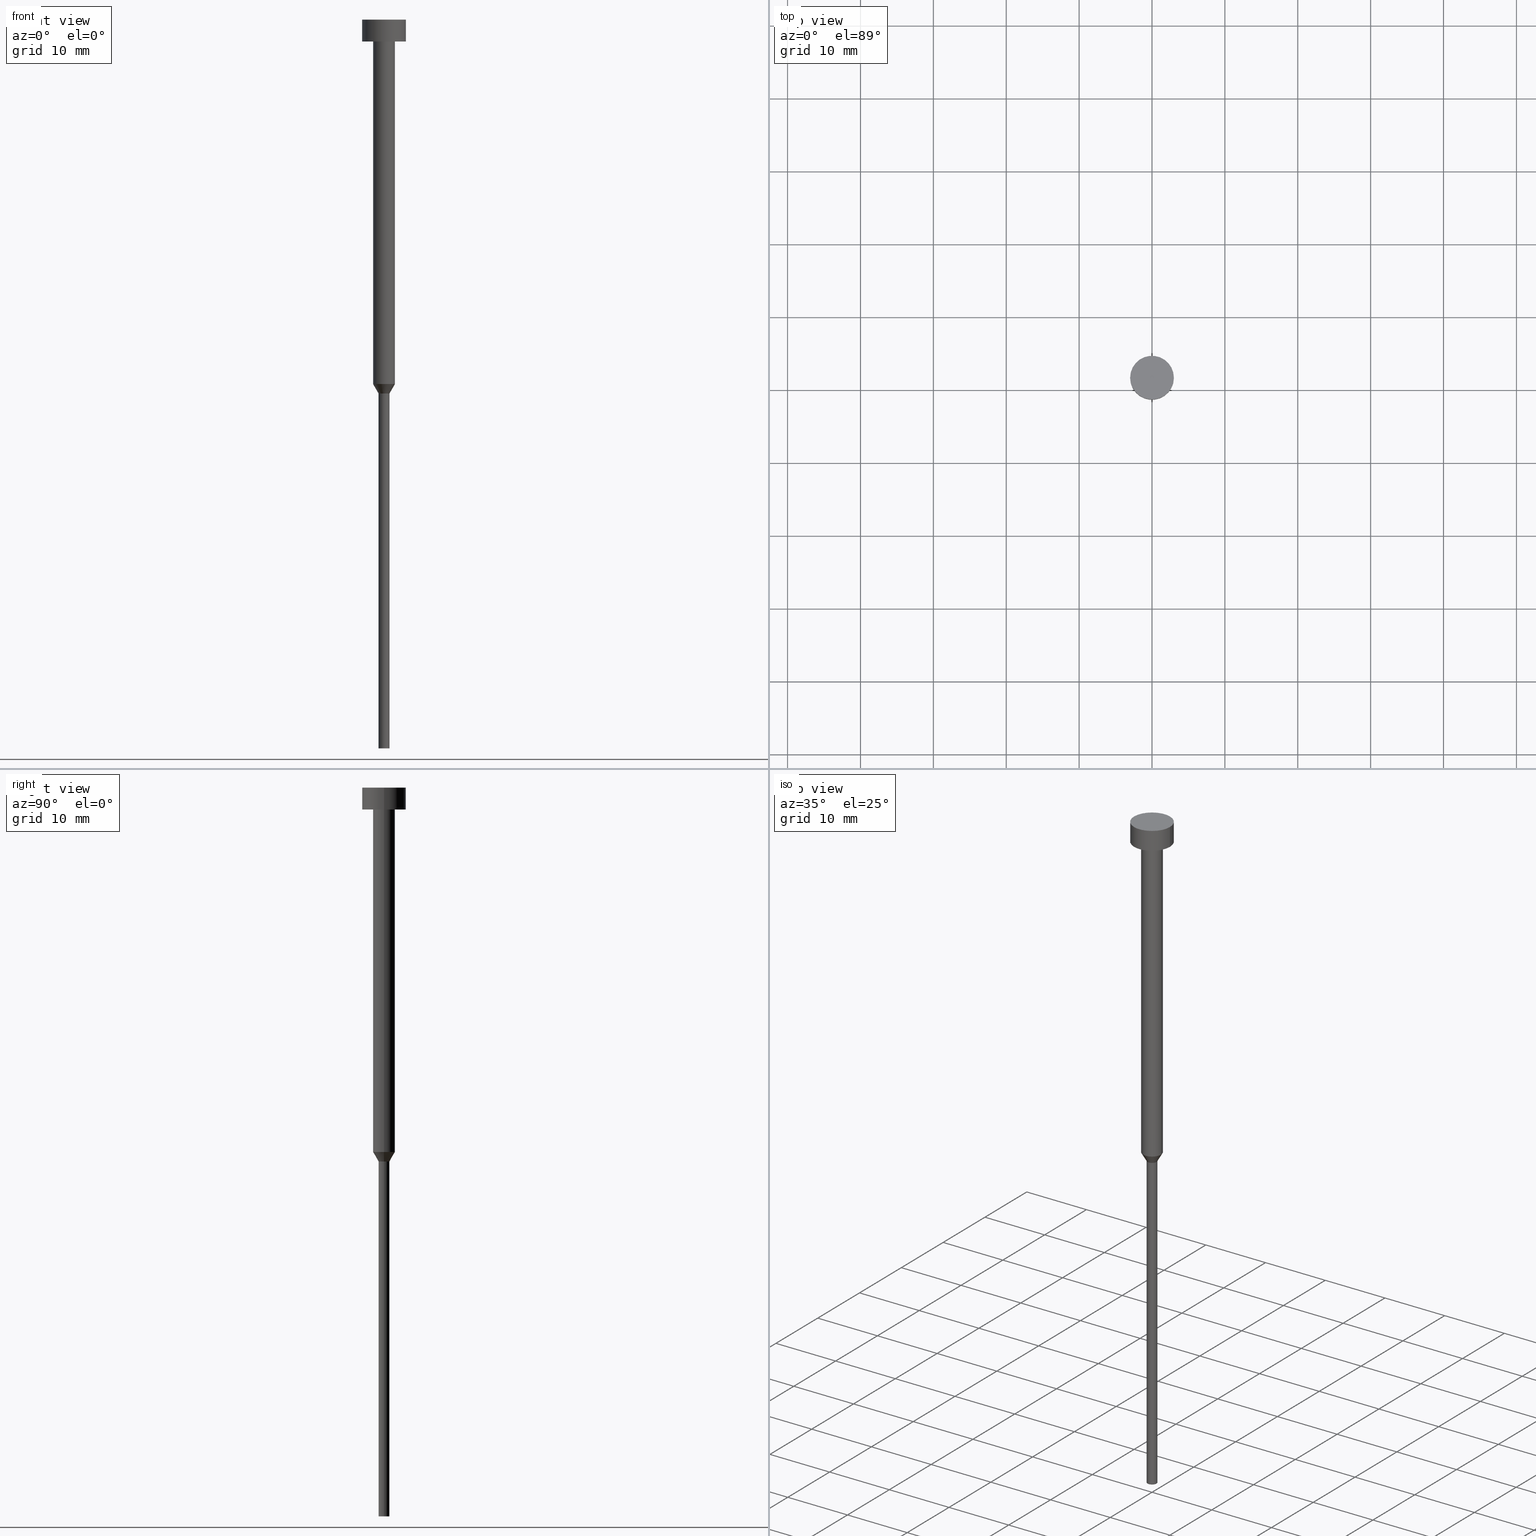
[diagram: canonical four-view strip — front | top / right | iso, engineering-drawing reading convention]
A machine part, canonical four-view strip (front | top / right | iso — engineering-drawing reading convention). The complete STEP part file that produces these views, byte-faithful:
ISO-10303-21;
HEADER;
FILE_DESCRIPTION (( 'STEP AP203' ),
    '1' );
FILE_NAME ('82b9.STEP',
    '2024-07-29T06:35:33',
    ( '' ),
    ( '' ),
    'SwSTEP 2.0',
    'SolidWorks 2019',
    '' );
FILE_SCHEMA (( 'CONFIG_CONTROL_DESIGN' ));
ENDSEC;

DATA;
#1 = AXIS2_PLACEMENT_3D ( 'NONE', #189, #262, #102 ) ;
#2 = COORDINATED_UNIVERSAL_TIME_OFFSET ( 1, 0, .AHEAD. ) ;
#3 = CARTESIAN_POINT ( 'NONE',  ( 0.000000000000000000, 0.000000000000000000, 0.000000000000000000 ) ) ;
#4 = PERSON_AND_ORGANIZATION ( #225, #340 ) ;
#5 = AXIS2_PLACEMENT_3D ( 'NONE', #183, #51, #204 ) ;
#6 = APPROVAL_ROLE ( '' ) ;
#7 = CARTESIAN_POINT ( 'NONE',  ( 1.500000000000000000, 0.000000000000000000, 0.000000000000000000 ) ) ;
#8 = CARTESIAN_POINT ( 'NONE',  ( -1.500000000000000000, 1.836970198721029934E-16, 0.000000000000000000 ) ) ;
#9 = ORIENTED_EDGE ( 'NONE', *, *, #245, .T. ) ;
#10 = CARTESIAN_POINT ( 'NONE',  ( 0.000000000000000000, 0.000000000000000000, -3.000000000000000444 ) ) ;
#11 = EDGE_CURVE ( 'NONE', #25, #290, #216, .T. ) ;
#12 = CARTESIAN_POINT ( 'NONE',  ( 0.000000000000000000, 0.000000000000000000, -100.0000000000000000 ) ) ;
#13 = DIRECTION ( 'NONE',  ( 0.000000000000000000, -0.000000000000000000, 1.000000000000000000 ) ) ;
#14 = ORIENTED_EDGE ( 'NONE', *, *, #127, .F. ) ;
#15 = PRODUCT_DEFINITION_FORMATION_WITH_SPECIFIED_SOURCE ( 'LIBOVOLN�', '', #173, .NOT_KNOWN. ) ;
#16 = FACE_OUTER_BOUND ( 'NONE', #98, .T. ) ;
#17 = CARTESIAN_POINT ( 'NONE',  ( -3.000000000000000000, 3.673940397442059868E-16, 0.000000000000000000 ) ) ;
#18 = EDGE_LOOP ( 'NONE', ( #132, #35, #194, #205 ) ) ;
#19 = LINE ( 'NONE', #129, #176 ) ;
#20 = DIRECTION ( 'NONE',  ( -0.000000000000000000, -0.000000000000000000, 1.000000000000000000 ) ) ;
#21 = FACE_OUTER_BOUND ( 'NONE', #246, .T. ) ;
#22 = AXIS2_PLACEMENT_3D ( 'NONE', #336, #31, #33 ) ;
#23 = AXIS2_PLACEMENT_3D ( 'NONE', #146, #13, #232 ) ;
#24 = ORIENTED_EDGE ( 'NONE', *, *, #110, .T. ) ;
#25 = VERTEX_POINT ( 'NONE', #67 ) ;
#26 = EDGE_CURVE ( 'NONE', #178, #219, #203, .T. ) ;
#27 = AXIS2_PLACEMENT_3D ( 'NONE', #44, #192, #154 ) ;
#28 = CALENDAR_DATE ( 2024, 29, 7 ) ;
#29 = CIRCLE ( 'NONE', #27, 1.500000000000000000 ) ;
#30 = CC_DESIGN_DATE_AND_TIME_ASSIGNMENT ( #61, #112, ( #130 ) ) ;
#31 = DIRECTION ( 'NONE',  ( -0.000000000000000000, -0.000000000000000000, 1.000000000000000000 ) ) ;
#32 = DATE_TIME_ROLE ( 'creation_date' ) ;
#33 = DIRECTION ( 'NONE',  ( 1.000000000000000000, 0.000000000000000000, 0.000000000000000000 ) ) ;
#34 = ADVANCED_FACE ( 'NONE', ( #284 ), #37, .T. ) ;
#35 = ORIENTED_EDGE ( 'NONE', *, *, #26, .T. ) ;
#36 = AXIS2_PLACEMENT_3D ( 'NONE', #309, #233, #267 ) ;
#37 = PLANE ( 'NONE',  #23 ) ;
#38 = UNCERTAINTY_MEASURE_WITH_UNIT (LENGTH_MEASURE( 1.000000000000000082E-05 ), #294, 'distance_accuracy_value', 'NONE');
#39 = CARTESIAN_POINT ( 'NONE',  ( 3.000000000000000000, 0.000000000000000000, 0.000000000000000000 ) ) ;
#40 = DIRECTION ( 'NONE',  ( -0.000000000000000000, -0.000000000000000000, 1.000000000000000000 ) ) ;
#41 = LINE ( 'NONE', #7, #248 ) ;
#42 = VERTEX_POINT ( 'NONE', #286 ) ;
#43 = DIRECTION ( 'NONE',  ( -0.000000000000000000, -0.000000000000000000, 1.000000000000000000 ) ) ;
#44 = CARTESIAN_POINT ( 'NONE',  ( 0.000000000000000000, 0.000000000000000000, -50.00000000000000000 ) ) ;
#45 = LINE ( 'NONE', #97, #277 ) ;
#46 = VERTEX_POINT ( 'NONE', #234 ) ;
#47 = CIRCLE ( 'NONE', #218, 3.000000000000000000 ) ;
#48 = DIRECTION ( 'NONE',  ( 1.000000000000000000, 0.000000000000000000, 0.000000000000000000 ) ) ;
#49 = DIRECTION ( 'NONE',  ( 1.000000000000000000, 0.000000000000000000, 0.000000000000000000 ) ) ;
#50 = CARTESIAN_POINT ( 'NONE',  ( 3.000000000000000000, 0.000000000000000000, -3.673940397442059868E-16 ) ) ;
#51 = DIRECTION ( 'NONE',  ( -0.000000000000000000, -0.000000000000000000, 1.000000000000000000 ) ) ;
#52 = CIRCLE ( 'NONE', #298, 3.000000000000000000 ) ;
#53 = ORIENTED_EDGE ( 'NONE', *, *, #167, .F. ) ;
#54 = EDGE_CURVE ( 'NONE', #166, #46, #41, .T. ) ;
#55 = ORIENTED_EDGE ( 'NONE', *, *, #251, .F. ) ;
#56 = AXIS2_PLACEMENT_3D ( 'NONE', #158, #160, #73 ) ;
#57 = AXIS2_PLACEMENT_3D ( 'NONE', #94, #311, #255 ) ;
#58 = APPROVAL_ROLE ( '' ) ;
#59 = AXIS2_PLACEMENT_3D ( 'NONE', #346, #243, #210 ) ;
#60 = DESIGN_CONTEXT ( 'detailed design', #222, 'design' ) ;
#61 = DATE_AND_TIME ( #334, #328 ) ;
#62 = CC_DESIGN_PERSON_AND_ORGANIZATION_ASSIGNMENT ( #87, #136, ( #15 ) ) ;
#63 = MECHANICAL_CONTEXT ( 'NONE', #144, 'mechanical' ) ;
#64 = SECURITY_CLASSIFICATION_LEVEL ( 'unclassified' ) ;
#65 = CYLINDRICAL_SURFACE ( 'NONE', #324, 3.000000000000000000 ) ;
#66 = LOCAL_TIME ( 8, 35, 33.00000000000000000, #174 ) ;
#67 = CARTESIAN_POINT ( 'NONE',  ( 0.7500000000000000000, 0.000000000000000000, -100.0000000000000000 ) ) ;
#68 = FACE_OUTER_BOUND ( 'NONE', #106, .T. ) ;
#69 = DIRECTION ( 'NONE',  ( -0.5000000000000021094, 6.123233995736791920E-17, 0.8660254037844373753 ) ) ;
#70 = CARTESIAN_POINT ( 'NONE',  ( 0.000000000000000000, 0.000000000000000000, -3.673940397442059868E-16 ) ) ;
#71 = CARTESIAN_POINT ( 'NONE',  ( 0.000000000000000000, 0.000000000000000000, -50.00000000000000000 ) ) ;
#72 = EDGE_LOOP ( 'NONE', ( #287, #353, #270, #53 ) ) ;
#73 = DIRECTION ( 'NONE',  ( 1.000000000000000000, 0.000000000000000000, 0.000000000000000000 ) ) ;
#74 = CARTESIAN_POINT ( 'NONE',  ( 0.000000000000000000, 0.000000000000000000, -51.29903810567665090 ) ) ;
#75 = DIRECTION ( 'NONE',  ( 0.5000000000000021094, 0.000000000000000000, 0.8660254037844373753 ) ) ;
#76 = EDGE_LOOP ( 'NONE', ( #320, #9, #125, #213 ) ) ;
#77 = AXIS2_PLACEMENT_3D ( 'NONE', #104, #116, #48 ) ;
#78 = FACE_OUTER_BOUND ( 'NONE', #76, .T. ) ;
#79 = DIRECTION ( 'NONE',  ( -0.000000000000000000, -0.000000000000000000, 1.000000000000000000 ) ) ;
#80 = ADVANCED_FACE ( 'NONE', ( #115 ), #95, .T. ) ;
#81 = ORIENTED_EDGE ( 'NONE', *, *, #175, .T. ) ;
#82 = EDGE_CURVE ( 'NONE', #42, #166, #45, .T. ) ;
#83 = LOCAL_TIME ( 8, 35, 33.00000000000000000, #114 ) ;
#84 = ORIENTED_EDGE ( 'NONE', *, *, #245, .F. ) ;
#85 = AXIS2_PLACEMENT_3D ( 'NONE', #3, #143, #111 ) ;
#86 = APPROVAL_STATUS ( 'not_yet_approved' ) ;
#87 = PERSON_AND_ORGANIZATION ( #225, #340 ) ;
#88 = CALENDAR_DATE ( 2024, 29, 7 ) ;
#89 = ADVANCED_FACE ( 'NONE', ( #236 ), #292, .T. ) ;
#90 = DATE_AND_TIME ( #88, #66 ) ;
#91 = DIRECTION ( 'NONE',  ( -0.000000000000000000, -0.000000000000000000, 1.000000000000000000 ) ) ;
#92 = ORIENTED_EDGE ( 'NONE', *, *, #82, .T. ) ;
#93 = DIRECTION ( 'NONE',  ( -1.000000000000000000, 0.000000000000000000, -0.000000000000000000 ) ) ;
#94 = CARTESIAN_POINT ( 'NONE',  ( 0.000000000000000000, 0.000000000000000000, -100.0000000000000000 ) ) ;
#95 = CONICAL_SURFACE ( 'NONE', #164, 1.500000000000000000, 0.5235987755983013692 ) ;
#96 = CARTESIAN_POINT ( 'NONE',  ( 0.000000000000000000, 0.000000000000000000, -100.0000000000000000 ) ) ;
#97 = CARTESIAN_POINT ( 'NONE',  ( 1.500000000000000000, 0.000000000000000000, -50.00000000000000000 ) ) ;
#98 = EDGE_LOOP ( 'NONE', ( #217, #348, #92, #296 ) ) ;
#99 = CC_DESIGN_PERSON_AND_ORGANIZATION_ASSIGNMENT ( #169, #170, ( #15 ) ) ;
#100 = CARTESIAN_POINT ( 'NONE',  ( -1.500000000000000000, 1.836970198721029934E-16, -50.00000000000000000 ) ) ;
#101 = PERSON_AND_ORGANIZATION_ROLE ( 'design_owner' ) ;
#102 = DIRECTION ( 'NONE',  ( 1.000000000000000000, 0.000000000000000000, 0.000000000000000000 ) ) ;
#103 = VERTEX_POINT ( 'NONE', #50 ) ;
#104 = CARTESIAN_POINT ( 'NONE',  ( 0.000000000000000000, 0.000000000000000000, -3.000000000000000444 ) ) ;
#105 = EDGE_CURVE ( 'NONE', #107, #258, #155, .T. ) ;
#106 = EDGE_LOOP ( 'NONE', ( #354, #14 ) ) ;
#107 = VERTEX_POINT ( 'NONE', #148 ) ;
#108 = CIRCLE ( 'NONE', #199, 3.000000000000000000 ) ;
#109 = CIRCLE ( 'NONE', #271, 1.500000000000000000 ) ;
#110 = EDGE_CURVE ( 'NONE', #166, #219, #109, .T. ) ;
#111 = DIRECTION ( 'NONE',  ( 1.000000000000000000, 0.000000000000000000, 0.000000000000000000 ) ) ;
#112 = DATE_TIME_ROLE ( 'classification_date' ) ;
#113 = PRODUCT_DEFINITION_SHAPE ( 'NONE', 'NONE',  #138 ) ;
#114 = COORDINATED_UNIVERSAL_TIME_OFFSET ( 1, 0, .AHEAD. ) ;
#115 = FACE_OUTER_BOUND ( 'NONE', #18, .T. ) ;
#116 = DIRECTION ( 'NONE',  ( -0.000000000000000000, -0.000000000000000000, 1.000000000000000000 ) ) ;
#117 = DATE_AND_TIME ( #231, #83 ) ;
#118 = FACE_OUTER_BOUND ( 'NONE', #121, .T. ) ;
#119 = CC_DESIGN_SECURITY_CLASSIFICATION ( #130, ( #15 ) ) ;
#120 = DIRECTION ( 'NONE',  ( 1.000000000000000000, 0.000000000000000000, 0.000000000000000000 ) ) ;
#121 = EDGE_LOOP ( 'NONE', ( #84, #133, #344, #165 ) ) ;
#122 = DIRECTION ( 'NONE',  ( -0.000000000000000000, -0.000000000000000000, 1.000000000000000000 ) ) ;
#123 = DIRECTION ( 'NONE',  ( -0.000000000000000000, -0.000000000000000000, 1.000000000000000000 ) ) ;
#124 = MANIFOLD_SOLID_BREP ( 'Rotovat1', #177 ) ;
#125 = ORIENTED_EDGE ( 'NONE', *, *, #230, .F. ) ;
#126 = CC_DESIGN_PERSON_AND_ORGANIZATION_ASSIGNMENT ( #200, #101, ( #173 ) ) ;
#127 = EDGE_CURVE ( 'NONE', #290, #25, #342, .T. ) ;
#128 = CYLINDRICAL_SURFACE ( 'NONE', #171, 0.7500000000000000000 ) ;
#129 = CARTESIAN_POINT ( 'NONE',  ( -0.7500000000000000000, 9.184850993605149670E-17, 0.000000000000000000 ) ) ;
#130 = SECURITY_CLASSIFICATION ( '', '', #64 ) ;
#131 = APPROVAL_PERSON_ORGANIZATION ( #198, #250, #58 ) ;
#132 = ORIENTED_EDGE ( 'NONE', *, *, #230, .T. ) ;
#133 = ORIENTED_EDGE ( 'NONE', *, *, #127, .T. ) ;
#134 = APPROVAL_PERSON_ORGANIZATION ( #281, #315, #6 ) ;
#135 = ADVANCED_FACE ( 'NONE', ( #239 ), #185, .T. ) ;
#136 = PERSON_AND_ORGANIZATION_ROLE ( 'creator' ) ;
#137 = VECTOR ( 'NONE', #214, 1000.000000000000000 ) ;
#138 = PRODUCT_DEFINITION ( 'NEZN�M�', '', #15, #60 ) ;
#139 = VECTOR ( 'NONE', #40, 1000.000000000000000 ) ;
#140 = PERSON_AND_ORGANIZATION_ROLE ( 'classification_officer' ) ;
#141 = ORIENTED_EDGE ( 'NONE', *, *, #297, .T. ) ;
#142 = APPROVAL_DATE_TIME ( #301, #250 ) ;
#143 = DIRECTION ( 'NONE',  ( 0.000000000000000000, 0.000000000000000000, 1.000000000000000000 ) ) ;
#144 = APPLICATION_CONTEXT ( 'configuration controlled 3d designs of mechanical parts and assemblies' ) ;
#145 = ADVANCED_BREP_SHAPE_REPRESENTATION ( '82b9', ( #124, #85 ), #229 ) ;
#146 = CARTESIAN_POINT ( 'NONE',  ( 0.000000000000000000, 0.000000000000000000, -1.836970198721029934E-16 ) ) ;
#147 = DIRECTION ( 'NONE',  ( 1.000000000000000000, 0.000000000000000000, 0.000000000000000000 ) ) ;
#148 = CARTESIAN_POINT ( 'NONE',  ( -3.000000000000000000, 3.673940397442059868E-16, -3.000000000000000444 ) ) ;
#149 = DIRECTION ( 'NONE',  ( -0.000000000000000000, -0.000000000000000000, 1.000000000000000000 ) ) ;
#150 = EDGE_LOOP ( 'NONE', ( #180, #273, #240, #323 ) ) ;
#151 = CARTESIAN_POINT ( 'NONE',  ( -0.7500000000000000000, 9.184850993605149670E-17, -51.29903810567665090 ) ) ;
#152 = CC_DESIGN_DATE_AND_TIME_ASSIGNMENT ( #300, #32, ( #138 ) ) ;
#153 = AXIS2_PLACEMENT_3D ( 'NONE', #96, #338, #187 ) ;
#154 = DIRECTION ( 'NONE',  ( 1.000000000000000000, 0.000000000000000000, 0.000000000000000000 ) ) ;
#155 = LINE ( 'NONE', #17, #139 ) ;
#156 = EDGE_CURVE ( 'NONE', #107, #307, #52, .T. ) ;
#157 = ORIENTED_EDGE ( 'NONE', *, *, #54, .F. ) ;
#158 = CARTESIAN_POINT ( 'NONE',  ( 0.000000000000000000, 0.000000000000000000, -50.00000000000000000 ) ) ;
#159 =( NAMED_UNIT ( * ) SI_UNIT ( $, .STERADIAN. ) SOLID_ANGLE_UNIT ( ) );
#160 = DIRECTION ( 'NONE',  ( -0.000000000000000000, -0.000000000000000000, 1.000000000000000000 ) ) ;
#161 = CYLINDRICAL_SURFACE ( 'NONE', #351, 1.500000000000000000 ) ;
#162 = VECTOR ( 'NONE', #20, 1000.000000000000000 ) ;
#163 = ORIENTED_EDGE ( 'NONE', *, *, #251, .T. ) ;
#164 = AXIS2_PLACEMENT_3D ( 'NONE', #337, #319, #120 ) ;
#165 = ORIENTED_EDGE ( 'NONE', *, *, #330, .F. ) ;
#166 = VERTEX_POINT ( 'NONE', #179 ) ;
#167 = EDGE_CURVE ( 'NONE', #258, #103, #308, .T. ) ;
#168 = VECTOR ( 'NONE', #235, 1000.000000000000000 ) ;
#169 = PERSON_AND_ORGANIZATION ( #225, #340 ) ;
#170 = PERSON_AND_ORGANIZATION_ROLE ( 'design_supplier' ) ;
#171 = AXIS2_PLACEMENT_3D ( 'NONE', #349, #43, #260 ) ;
#172 = APPLICATION_PROTOCOL_DEFINITION ( 'international standard', 'config_control_design', 1994, #222 ) ;
#173 = PRODUCT ( '82b9', '82b9', '', ( #63 ) ) ;
#174 = COORDINATED_UNIVERSAL_TIME_OFFSET ( 1, 0, .AHEAD. ) ;
#175 = EDGE_CURVE ( 'NONE', #46, #237, #274, .T. ) ;
#176 = VECTOR ( 'NONE', #352, 1000.000000000000000 ) ;
#177 = CLOSED_SHELL ( 'NONE', ( #327, #302, #80, #196, #242, #272, #206, #89, #221, #135, #34 ) ) ;
#178 = VERTEX_POINT ( 'NONE', #151 ) ;
#179 = CARTESIAN_POINT ( 'NONE',  ( 1.500000000000000000, 0.000000000000000000, -50.00000000000000000 ) ) ;
#180 = ORIENTED_EDGE ( 'NONE', *, *, #278, .F. ) ;
#181 = ORIENTED_EDGE ( 'NONE', *, *, #105, .T. ) ;
#182 = EDGE_CURVE ( 'NONE', #307, #103, #241, .T. ) ;
#183 = CARTESIAN_POINT ( 'NONE',  ( 0.000000000000000000, 0.000000000000000000, -3.673940397442059868E-16 ) ) ;
#184 = CARTESIAN_POINT ( 'NONE',  ( 3.000000000000000000, 0.000000000000000000, -3.000000000000000444 ) ) ;
#185 = CYLINDRICAL_SURFACE ( 'NONE', #249, 3.000000000000000000 ) ;
#186 = EDGE_LOOP ( 'NONE', ( #141, #209 ) ) ;
#187 = DIRECTION ( 'NONE',  ( -1.000000000000000000, 0.000000000000000000, -0.000000000000000000 ) ) ;
#188 = DIRECTION ( 'NONE',  ( -0.000000000000000000, -0.000000000000000000, 1.000000000000000000 ) ) ;
#189 = CARTESIAN_POINT ( 'NONE',  ( 0.000000000000000000, 0.000000000000000000, 0.000000000000000000 ) ) ;
#190 = ORIENTED_EDGE ( 'NONE', *, *, #175, .F. ) ;
#191 = FACE_BOUND ( 'NONE', #335, .T. ) ;
#192 = DIRECTION ( 'NONE',  ( -0.000000000000000000, -0.000000000000000000, 1.000000000000000000 ) ) ;
#193 = CC_DESIGN_APPROVAL ( #250, ( #15 ) ) ;
#194 = ORIENTED_EDGE ( 'NONE', *, *, #110, .F. ) ;
#195 = EDGE_LOOP ( 'NONE', ( #24, #244, #190, #157 ) ) ;
#196 = ADVANCED_FACE ( 'NONE', ( #78 ), #322, .T. ) ;
#197 = AXIS2_PLACEMENT_3D ( 'NONE', #74, #79, #49 ) ;
#198 = PERSON_AND_ORGANIZATION ( #225, #340 ) ;
#199 = AXIS2_PLACEMENT_3D ( 'NONE', #70, #122, #304 ) ;
#200 = PERSON_AND_ORGANIZATION ( #225, #340 ) ;
#201 = APPROVAL_DATE_TIME ( #117, #315 ) ;
#202 = FACE_OUTER_BOUND ( 'NONE', #314, .T. ) ;
#203 = LINE ( 'NONE', #339, #283 ) ;
#204 = DIRECTION ( 'NONE',  ( 1.000000000000000000, 0.000000000000000000, 0.000000000000000000 ) ) ;
#205 = ORIENTED_EDGE ( 'NONE', *, *, #82, .F. ) ;
#206 = ADVANCED_FACE ( 'NONE', ( #16 ), #321, .T. ) ;
#207 = CARTESIAN_POINT ( 'NONE',  ( -1.500000000000000000, 1.836970198721029934E-16, -3.000000000000000444 ) ) ;
#208 = DIRECTION ( 'NONE',  ( -0.000000000000000000, -0.000000000000000000, 1.000000000000000000 ) ) ;
#209 = ORIENTED_EDGE ( 'NONE', *, *, #167, .T. ) ;
#210 = DIRECTION ( 'NONE',  ( 1.000000000000000000, 0.000000000000000000, 0.000000000000000000 ) ) ;
#211 = DIRECTION ( 'NONE',  ( 1.000000000000000000, 0.000000000000000000, 0.000000000000000000 ) ) ;
#212 = CARTESIAN_POINT ( 'NONE',  ( 0.000000000000000000, 0.000000000000000000, -3.000000000000000444 ) ) ;
#213 = ORIENTED_EDGE ( 'NONE', *, *, #345, .F. ) ;
#214 = DIRECTION ( 'NONE',  ( -0.000000000000000000, -0.000000000000000000, 1.000000000000000000 ) ) ;
#215 = CIRCLE ( 'NONE', #36, 0.7500000000000000000 ) ;
#216 = CIRCLE ( 'NONE', #57, 0.7500000000000000000 ) ;
#217 = ORIENTED_EDGE ( 'NONE', *, *, #26, .F. ) ;
#218 = AXIS2_PLACEMENT_3D ( 'NONE', #10, #285, #147 ) ;
#219 = VERTEX_POINT ( 'NONE', #100 ) ;
#220 = CC_DESIGN_PERSON_AND_ORGANIZATION_ASSIGNMENT ( #276, #331, ( #138 ) ) ;
#221 = ADVANCED_FACE ( 'NONE', ( #191, #21 ), #265, .T. ) ;
#222 = APPLICATION_CONTEXT ( 'configuration controlled 3d designs of mechanical parts and assemblies' ) ;
#223 = APPROVAL_PERSON_ORGANIZATION ( #226, #326, #228 ) ;
#224 = COORDINATED_UNIVERSAL_TIME_OFFSET ( 1, 0, .AHEAD. ) ;
#225 = PERSON ( 'NEUR�EN�', 'NEUR�EN�', 'NEUR�EN�', ('NEUR�EN�'), ('NEUR�EN�'), ('NEUR�EN�') ) ;
#226 = PERSON_AND_ORGANIZATION ( #225, #340 ) ;
#227 = PRODUCT_RELATED_PRODUCT_CATEGORY ( 'detail', '', ( #173 ) ) ;
#228 = APPROVAL_ROLE ( '' ) ;
#229 =( GEOMETRIC_REPRESENTATION_CONTEXT ( 3 ) GLOBAL_UNCERTAINTY_ASSIGNED_CONTEXT ( ( #38 ) ) GLOBAL_UNIT_ASSIGNED_CONTEXT ( ( #294, #279, #159 ) ) REPRESENTATION_CONTEXT ( 'NONE', 'WORKASPACE' ) );
#230 = EDGE_CURVE ( 'NONE', #42, #178, #215, .T. ) ;
#231 = CALENDAR_DATE ( 2024, 29, 7 ) ;
#232 = DIRECTION ( 'NONE',  ( 1.000000000000000000, 0.000000000000000000, 0.000000000000000000 ) ) ;
#233 = DIRECTION ( 'NONE',  ( -0.000000000000000000, -0.000000000000000000, 1.000000000000000000 ) ) ;
#234 = CARTESIAN_POINT ( 'NONE',  ( 1.500000000000000000, 0.000000000000000000, -3.000000000000000444 ) ) ;
#235 = DIRECTION ( 'NONE',  ( -0.000000000000000000, -0.000000000000000000, 1.000000000000000000 ) ) ;
#236 = FACE_OUTER_BOUND ( 'NONE', #150, .T. ) ;
#237 = VERTEX_POINT ( 'NONE', #207 ) ;
#238 = DIRECTION ( 'NONE',  ( 1.000000000000000000, 0.000000000000000000, 0.000000000000000000 ) ) ;
#239 = FACE_OUTER_BOUND ( 'NONE', #72, .T. ) ;
#240 = ORIENTED_EDGE ( 'NONE', *, *, #54, .T. ) ;
#241 = LINE ( 'NONE', #39, #137 ) ;
#242 = ADVANCED_FACE ( 'NONE', ( #68 ), #341, .T. ) ;
#243 = DIRECTION ( 'NONE',  ( -0.000000000000000000, -0.000000000000000000, 1.000000000000000000 ) ) ;
#244 = ORIENTED_EDGE ( 'NONE', *, *, #278, .T. ) ;
#245 = EDGE_CURVE ( 'NONE', #290, #178, #19, .T. ) ;
#246 = EDGE_LOOP ( 'NONE', ( #55, #259 ) ) ;
#247 = CIRCLE ( 'NONE', #197, 0.7500000000000000000 ) ;
#248 = VECTOR ( 'NONE', #149, 1000.000000000000000 ) ;
#249 = AXIS2_PLACEMENT_3D ( 'NONE', #289, #123, #347 ) ;
#250 = APPROVAL ( #254, 'NEUR�EN�' ) ;
#251 = EDGE_CURVE ( 'NONE', #307, #107, #47, .T. ) ;
#252 = COORDINATED_UNIVERSAL_TIME_OFFSET ( 1, 0, .AHEAD. ) ;
#253 = APPROVAL_STATUS ( 'not_yet_approved' ) ;
#254 = APPROVAL_STATUS ( 'not_yet_approved' ) ;
#255 = DIRECTION ( 'NONE',  ( 1.000000000000000000, 0.000000000000000000, 0.000000000000000000 ) ) ;
#256 = LINE ( 'NONE', #8, #168 ) ;
#257 = DIRECTION ( 'NONE',  ( -0.000000000000000000, -0.000000000000000000, 1.000000000000000000 ) ) ;
#258 = VERTEX_POINT ( 'NONE', #288 ) ;
#259 = ORIENTED_EDGE ( 'NONE', *, *, #156, .F. ) ;
#260 = DIRECTION ( 'NONE',  ( 1.000000000000000000, 0.000000000000000000, 0.000000000000000000 ) ) ;
#261 = LINE ( 'NONE', #318, #162 ) ;
#262 = DIRECTION ( 'NONE',  ( -0.000000000000000000, -0.000000000000000000, 1.000000000000000000 ) ) ;
#263 = ORIENTED_EDGE ( 'NONE', *, *, #182, .F. ) ;
#264 = CC_DESIGN_PERSON_AND_ORGANIZATION_ASSIGNMENT ( #4, #140, ( #130 ) ) ;
#265 = PLANE ( 'NONE',  #355 ) ;
#266 = FACE_OUTER_BOUND ( 'NONE', #195, .T. ) ;
#267 = DIRECTION ( 'NONE',  ( 1.000000000000000000, 0.000000000000000000, 0.000000000000000000 ) ) ;
#268 = CARTESIAN_POINT ( 'NONE',  ( 0.000000000000000000, 0.000000000000000000, 0.000000000000000000 ) ) ;
#269 = CC_DESIGN_APPROVAL ( #326, ( #130 ) ) ;
#270 = ORIENTED_EDGE ( 'NONE', *, *, #182, .T. ) ;
#271 = AXIS2_PLACEMENT_3D ( 'NONE', #71, #257, #343 ) ;
#272 = ADVANCED_FACE ( 'NONE', ( #118 ), #128, .T. ) ;
#273 = ORIENTED_EDGE ( 'NONE', *, *, #317, .T. ) ;
#274 = CIRCLE ( 'NONE', #77, 1.500000000000000000 ) ;
#275 = CC_DESIGN_APPROVAL ( #315, ( #138 ) ) ;
#276 = PERSON_AND_ORGANIZATION ( #225, #340 ) ;
#277 = VECTOR ( 'NONE', #75, 1000.000000000000227 ) ;
#278 = EDGE_CURVE ( 'NONE', #219, #237, #256, .T. ) ;
#279 =( NAMED_UNIT ( * ) PLANE_ANGLE_UNIT ( ) SI_UNIT ( $, .RADIAN. ) );
#280 = APPROVAL_DATE_TIME ( #90, #326 ) ;
#281 = PERSON_AND_ORGANIZATION ( #225, #340 ) ;
#282 = LOCAL_TIME ( 8, 35, 33.00000000000000000, #2 ) ;
#283 = VECTOR ( 'NONE', #69, 1000.000000000000227 ) ;
#284 = FACE_OUTER_BOUND ( 'NONE', #186, .T. ) ;
#285 = DIRECTION ( 'NONE',  ( -0.000000000000000000, -0.000000000000000000, 1.000000000000000000 ) ) ;
#286 = CARTESIAN_POINT ( 'NONE',  ( 0.7500000000000000000, 0.000000000000000000, -51.29903810567665090 ) ) ;
#287 = ORIENTED_EDGE ( 'NONE', *, *, #105, .F. ) ;
#288 = CARTESIAN_POINT ( 'NONE',  ( -3.000000000000000000, 3.673940397442059868E-16, -3.673940397442059868E-16 ) ) ;
#289 = CARTESIAN_POINT ( 'NONE',  ( 0.000000000000000000, 0.000000000000000000, 0.000000000000000000 ) ) ;
#290 = VERTEX_POINT ( 'NONE', #312 ) ;
#291 = DIRECTION ( 'NONE',  ( -0.000000000000000000, -0.000000000000000000, 1.000000000000000000 ) ) ;
#292 = CYLINDRICAL_SURFACE ( 'NONE', #1, 1.500000000000000000 ) ;
#293 = CARTESIAN_POINT ( 'NONE',  ( 0.000000000000000000, -3.000000000000000000, -3.000000000000000444 ) ) ;
#294 =( LENGTH_UNIT ( ) NAMED_UNIT ( * ) SI_UNIT ( .MILLI., .METRE. ) );
#295 = ORIENTED_EDGE ( 'NONE', *, *, #297, .F. ) ;
#296 = ORIENTED_EDGE ( 'NONE', *, *, #317, .F. ) ;
#297 = EDGE_CURVE ( 'NONE', #103, #258, #108, .T. ) ;
#298 = AXIS2_PLACEMENT_3D ( 'NONE', #212, #291, #238 ) ;
#299 = EDGE_CURVE ( 'NONE', #237, #46, #303, .T. ) ;
#300 = DATE_AND_TIME ( #28, #282 ) ;
#301 = DATE_AND_TIME ( #332, #329 ) ;
#302 = ADVANCED_FACE ( 'NONE', ( #266 ), #161, .T. ) ;
#303 = CIRCLE ( 'NONE', #22, 1.500000000000000000 ) ;
#304 = DIRECTION ( 'NONE',  ( 1.000000000000000000, 0.000000000000000000, 0.000000000000000000 ) ) ;
#305 = SHAPE_DEFINITION_REPRESENTATION ( #113, #145 ) ;
#306 = CARTESIAN_POINT ( 'NONE',  ( 0.000000000000000000, 0.000000000000000000, 0.000000000000000000 ) ) ;
#307 = VERTEX_POINT ( 'NONE', #184 ) ;
#308 = CIRCLE ( 'NONE', #5, 3.000000000000000000 ) ;
#309 = CARTESIAN_POINT ( 'NONE',  ( 0.000000000000000000, 0.000000000000000000, -51.29903810567665090 ) ) ;
#310 = AXIS2_PLACEMENT_3D ( 'NONE', #12, #208, #313 ) ;
#311 = DIRECTION ( 'NONE',  ( -0.000000000000000000, -0.000000000000000000, 1.000000000000000000 ) ) ;
#312 = CARTESIAN_POINT ( 'NONE',  ( -0.7500000000000000000, 9.184850993605149670E-17, -100.0000000000000000 ) ) ;
#313 = DIRECTION ( 'NONE',  ( 1.000000000000000000, 0.000000000000000000, 0.000000000000000000 ) ) ;
#314 = EDGE_LOOP ( 'NONE', ( #163, #181, #295, #263 ) ) ;
#315 = APPROVAL ( #253, 'NEUR�EN�' ) ;
#316 = DIRECTION ( 'NONE',  ( 0.000000000000000000, 0.000000000000000000, -1.000000000000000000 ) ) ;
#317 = EDGE_CURVE ( 'NONE', #219, #166, #29, .T. ) ;
#318 = CARTESIAN_POINT ( 'NONE',  ( 0.7500000000000000000, 0.000000000000000000, 0.000000000000000000 ) ) ;
#319 = DIRECTION ( 'NONE',  ( -0.000000000000000000, -0.000000000000000000, 1.000000000000000000 ) ) ;
#320 = ORIENTED_EDGE ( 'NONE', *, *, #11, .T. ) ;
#321 = CONICAL_SURFACE ( 'NONE', #56, 1.500000000000000000, 0.5235987755983013692 ) ;
#322 = CYLINDRICAL_SURFACE ( 'NONE', #59, 0.7500000000000000000 ) ;
#323 = ORIENTED_EDGE ( 'NONE', *, *, #299, .F. ) ;
#324 = AXIS2_PLACEMENT_3D ( 'NONE', #268, #188, #350 ) ;
#325 = ORIENTED_EDGE ( 'NONE', *, *, #299, .T. ) ;
#326 = APPROVAL ( #86, 'NEUR�EN�' ) ;
#327 = ADVANCED_FACE ( 'NONE', ( #202 ), #65, .T. ) ;
#328 = LOCAL_TIME ( 8, 35, 33.00000000000000000, #224 ) ;
#329 = LOCAL_TIME ( 8, 35, 33.00000000000000000, #252 ) ;
#330 = EDGE_CURVE ( 'NONE', #178, #42, #247, .T. ) ;
#331 = PERSON_AND_ORGANIZATION_ROLE ( 'creator' ) ;
#332 = CALENDAR_DATE ( 2024, 29, 7 ) ;
#333 = APPLICATION_PROTOCOL_DEFINITION ( 'international standard', 'config_control_design', 1994, #144 ) ;
#334 = CALENDAR_DATE ( 2024, 29, 7 ) ;
#335 = EDGE_LOOP ( 'NONE', ( #81, #325 ) ) ;
#336 = CARTESIAN_POINT ( 'NONE',  ( 0.000000000000000000, 0.000000000000000000, -3.000000000000000444 ) ) ;
#337 = CARTESIAN_POINT ( 'NONE',  ( 0.000000000000000000, 0.000000000000000000, -50.00000000000000000 ) ) ;
#338 = DIRECTION ( 'NONE',  ( 0.000000000000000000, 0.000000000000000000, -1.000000000000000000 ) ) ;
#339 = CARTESIAN_POINT ( 'NONE',  ( -1.500000000000000000, 1.836970198721029934E-16, -50.00000000000000000 ) ) ;
#340 = ORGANIZATION ( 'NEUR�EN�', 'NEUR�EN�', '' ) ;
#341 = PLANE ( 'NONE',  #153 ) ;
#342 = CIRCLE ( 'NONE', #310, 0.7500000000000000000 ) ;
#343 = DIRECTION ( 'NONE',  ( 1.000000000000000000, 0.000000000000000000, 0.000000000000000000 ) ) ;
#344 = ORIENTED_EDGE ( 'NONE', *, *, #345, .T. ) ;
#345 = EDGE_CURVE ( 'NONE', #25, #42, #261, .T. ) ;
#346 = CARTESIAN_POINT ( 'NONE',  ( 0.000000000000000000, 0.000000000000000000, 0.000000000000000000 ) ) ;
#347 = DIRECTION ( 'NONE',  ( 1.000000000000000000, 0.000000000000000000, 0.000000000000000000 ) ) ;
#348 = ORIENTED_EDGE ( 'NONE', *, *, #330, .T. ) ;
#349 = CARTESIAN_POINT ( 'NONE',  ( 0.000000000000000000, 0.000000000000000000, 0.000000000000000000 ) ) ;
#350 = DIRECTION ( 'NONE',  ( 1.000000000000000000, 0.000000000000000000, 0.000000000000000000 ) ) ;
#351 = AXIS2_PLACEMENT_3D ( 'NONE', #306, #91, #211 ) ;
#352 = DIRECTION ( 'NONE',  ( -0.000000000000000000, -0.000000000000000000, 1.000000000000000000 ) ) ;
#353 = ORIENTED_EDGE ( 'NONE', *, *, #156, .T. ) ;
#354 = ORIENTED_EDGE ( 'NONE', *, *, #11, .F. ) ;
#355 = AXIS2_PLACEMENT_3D ( 'NONE', #293, #316, #93 ) ;
ENDSEC;
END-ISO-10303-21;
